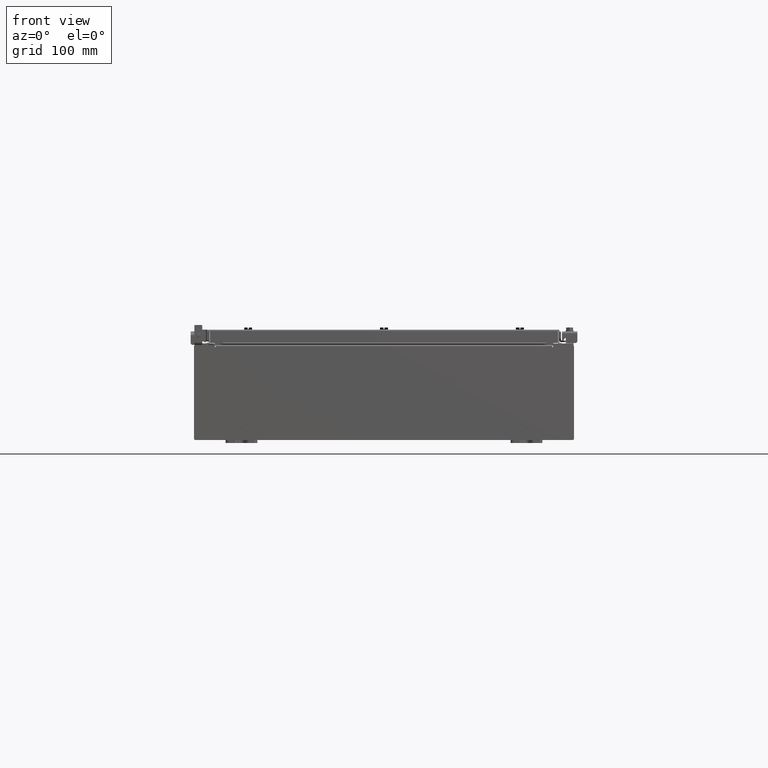
[diagram: clean part render]
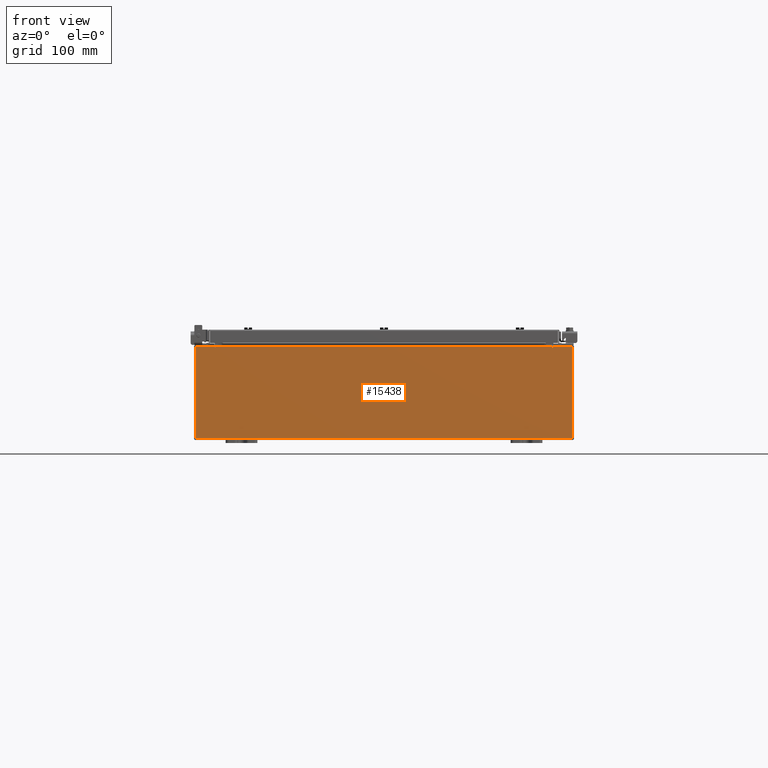
[diagram: same view with one face highlighted and labeled with its STEP entity id]
A machine part, front view. The second image highlights one B-rep face of the part: STEP entity #15438.
In plain terms, the highlighted planar face has unit normal (-0, 1, -0).
Its self-contained STEP definition (entity closure, byte-faithful):
#26 = ORIENTED_EDGE ( 'NONE', *, *, #2424, .T. ) ;
#71 = DIRECTION ( 'NONE',  ( -1.000000000000000000, -0.0000000000000000000, -0.0000000000000000000 ) ) ;
#196 = CARTESIAN_POINT ( 'NONE',  ( -11.92530000000000000, 0.0000000000000000000, 2.925300000000000500 ) ) ;
#260 = AXIS2_PLACEMENT_3D ( 'NONE', #13716, #1036, #9726 ) ;
#343 = DIRECTION ( 'NONE',  ( 1.000000000000000000, 0.0000000000000000000, 0.0000000000000000000 ) ) ;
#420 = VERTEX_POINT ( 'NONE', #18296 ) ;
#1036 = DIRECTION ( 'NONE',  ( -0.0000000000000000000, 1.000000000000000000, -0.0000000000000000000 ) ) ;
#1087 = LINE ( 'NONE', #1950, #19637 ) ;
#1301 = CARTESIAN_POINT ( 'NONE',  ( 11.92530000000000000, 0.0000000000000000000, 2.925300000000000500 ) ) ;
#1394 = DIRECTION ( 'NONE',  ( 0.0000000000000000000, 0.0000000000000000000, -1.000000000000000000 ) ) ;
#1409 = CARTESIAN_POINT ( 'NONE',  ( 10.63720000000000400, 0.0000000000000000000, 0.0000000000000000000 ) ) ;
#1474 = ORIENTED_EDGE ( 'NONE', *, *, #17584, .T. ) ;
#1617 = VERTEX_POINT ( 'NONE', #4886 ) ;
#1630 = CARTESIAN_POINT ( 'NONE',  ( 10.67455000000000200, 0.0000000000000000000, 2.874950000000000600 ) ) ;
#1950 = CARTESIAN_POINT ( 'NONE',  ( -11.92530000000000000, 0.0000000000000000000, 2.925300000000000500 ) ) ;
#1976 = LINE ( 'NONE', #196, #6797 ) ;
#2050 = DIRECTION ( 'NONE',  ( -0.0000000000000000000, -0.0000000000000000000, 1.000000000000000000 ) ) ;
#2424 = EDGE_CURVE ( 'NONE', #1617, #5900, #8476, .T. ) ;
#2739 = CARTESIAN_POINT ( 'NONE',  ( 11.92530000000000000, 0.0000000000000000000, -2.925299999999999600 ) ) ;
#2904 = EDGE_CURVE ( 'NONE', #3448, #1617, #1087, .T. ) ;
#3448 = VERTEX_POINT ( 'NONE', #6871 ) ;
#3664 = VECTOR ( 'NONE', #22945, 39.37007874015748100 ) ;
#3867 = ORIENTED_EDGE ( 'NONE', *, *, #16616, .F. ) ;
#4303 = EDGE_CURVE ( 'NONE', #420, #5107, #20281, .T. ) ;
#4551 = CARTESIAN_POINT ( 'NONE',  ( 10.65587500000000200, 0.0000000000000000000, 2.874950000000000600 ) ) ;
#4704 = VERTEX_POINT ( 'NONE', #21957 ) ;
#4886 = CARTESIAN_POINT ( 'NONE',  ( 11.92530000000000000, 0.0000000000000000000, 2.925300000000000500 ) ) ;
#5074 = ORIENTED_EDGE ( 'NONE', *, *, #6659, .F. ) ;
#5097 = VECTOR ( 'NONE', #20665, 39.37007874015748100 ) ;
#5107 = VERTEX_POINT ( 'NONE', #23246 ) ;
#5516 = LINE ( 'NONE', #1409, #15586 ) ;
#5634 = EDGE_CURVE ( 'NONE', #4704, #21028, #1976, .T. ) ;
#5900 = VERTEX_POINT ( 'NONE', #2739 ) ;
#5925 = VERTEX_POINT ( 'NONE', #20685 ) ;
#6295 = CARTESIAN_POINT ( 'NONE',  ( -11.92530000000000000, 0.0000000000000000000, 2.925300000000000500 ) ) ;
#6364 = DIRECTION ( 'NONE',  ( 0.0000000000000000000, 0.0000000000000000000, -1.000000000000000000 ) ) ;
#6659 = EDGE_CURVE ( 'NONE', #11723, #5925, #16801, .T. ) ;
#6797 = VECTOR ( 'NONE', #2050, 39.37007874015748100 ) ;
#6828 = PLANE ( 'NONE',  #19627 ) ;
#6871 = CARTESIAN_POINT ( 'NONE',  ( 10.67455000000000200, 0.0000000000000000000, 2.925300000000000500 ) ) ;
#7229 = ORIENTED_EDGE ( 'NONE', *, *, #7734, .F. ) ;
#7700 = ORIENTED_EDGE ( 'NONE', *, *, #19625, .F. ) ;
#7734 = EDGE_CURVE ( 'NONE', #3448, #11723, #16764, .T. ) ;
#7822 = DIRECTION ( 'NONE',  ( 0.0000000000000000000, 0.0000000000000000000, 1.000000000000000000 ) ) ;
#8476 = LINE ( 'NONE', #1301, #3664 ) ;
#8601 = CARTESIAN_POINT ( 'NONE',  ( -10.63720000000000400, -0.0000000000000000000, 0.0000000000000000000 ) ) ;
#8821 = ORIENTED_EDGE ( 'NONE', *, *, #4303, .F. ) ;
#9002 = CARTESIAN_POINT ( 'NONE',  ( 10.63720000000000400, 0.0000000000000000000, 2.912300000000000600 ) ) ;
#9027 = VECTOR ( 'NONE', #71, 39.37007874015748100 ) ;
#9168 = CARTESIAN_POINT ( 'NONE',  ( 10.67454999999987700, -0.0000000000000000000, -4.633366117301834200E-013 ) ) ;
#9465 = VECTOR ( 'NONE', #21590, 39.37007874015748100 ) ;
#9527 = EDGE_CURVE ( 'NONE', #5925, #23082, #5516, .T. ) ;
#9646 = CARTESIAN_POINT ( 'NONE',  ( -10.67455000000000200, -0.0000000000000000000, 0.0000000000000000000 ) ) ;
#9726 = DIRECTION ( 'NONE',  ( 0.0000000000000000000, 0.0000000000000000000, -1.000000000000000000 ) ) ;
#10364 = VECTOR ( 'NONE', #19859, 39.37007874015748100 ) ;
#10419 = VECTOR ( 'NONE', #7822, 39.37007874015748100 ) ;
#10444 = DIRECTION ( 'NONE',  ( 0.0000000000000000000, -0.0000000000000000000, -1.000000000000000000 ) ) ;
#10895 = CARTESIAN_POINT ( 'NONE',  ( -10.63720000000000400, 1.024442997624098700E-016, 2.912300000000000600 ) ) ;
#11047 = VERTEX_POINT ( 'NONE', #17671 ) ;
#11116 = ORIENTED_EDGE ( 'NONE', *, *, #14222, .T. ) ;
#11445 = VECTOR ( 'NONE', #1394, 39.37007874015748100 ) ;
#11723 = VERTEX_POINT ( 'NONE', #1630 ) ;
#12920 = ORIENTED_EDGE ( 'NONE', *, *, #5634, .T. ) ;
#13716 = CARTESIAN_POINT ( 'NONE',  ( -10.65587500000000200, 0.0000000000000000000, 2.874950000000000600 ) ) ;
#14222 = EDGE_CURVE ( 'NONE', #21028, #16465, #19940, .T. ) ;
#14321 = ORIENTED_EDGE ( 'NONE', *, *, #14489, .T. ) ;
#14489 = EDGE_CURVE ( 'NONE', #5900, #4704, #18512, .T. ) ;
#15059 = ORIENTED_EDGE ( 'NONE', *, *, #9527, .F. ) ;
#15438 = ADVANCED_FACE ( 'NONE', ( #20168 ), #6828, .F. ) ;
#15586 = VECTOR ( 'NONE', #15782, 39.37007874015748100 ) ;
#15782 = DIRECTION ( 'NONE',  ( 0.0000000000000000000, 0.0000000000000000000, 1.000000000000000000 ) ) ;
#16186 = LINE ( 'NONE', #8601, #11445 ) ;
#16465 = VERTEX_POINT ( 'NONE', #18816 ) ;
#16616 = EDGE_CURVE ( 'NONE', #11047, #420, #16186, .T. ) ;
#16764 = LINE ( 'NONE', #9168, #10364 ) ;
#16801 = CIRCLE ( 'NONE', #19819, 0.01867499999999949400 ) ;
#17066 = DIRECTION ( 'NONE',  ( -0.0000000000000000000, 1.000000000000000000, -0.0000000000000000000 ) ) ;
#17584 = EDGE_CURVE ( 'NONE', #11047, #23082, #18947, .T. ) ;
#17671 = CARTESIAN_POINT ( 'NONE',  ( -10.63720000000000400, 1.024442997624098700E-016, 2.912300000000000600 ) ) ;
#18179 = ORIENTED_EDGE ( 'NONE', *, *, #2904, .T. ) ;
#18296 = CARTESIAN_POINT ( 'NONE',  ( -10.63720000000000400, -0.0000000000000000000, 2.874950000000000600 ) ) ;
#18512 = LINE ( 'NONE', #21597, #9027 ) ;
#18816 = CARTESIAN_POINT ( 'NONE',  ( -10.67455000000000200, 0.0000000000000000000, 2.925300000000000500 ) ) ;
#18947 = LINE ( 'NONE', #10895, #9465 ) ;
#19408 = CARTESIAN_POINT ( 'NONE',  ( -11.92530000000000000, 0.0000000000000000000, 2.925300000000000500 ) ) ;
#19625 = EDGE_CURVE ( 'NONE', #5107, #16465, #19912, .T. ) ;
#19627 = AXIS2_PLACEMENT_3D ( 'NONE', #22858, #21114, #10444 ) ;
#19637 = VECTOR ( 'NONE', #343, 39.37007874015748100 ) ;
#19819 = AXIS2_PLACEMENT_3D ( 'NONE', #4551, #17066, #6364 ) ;
#19859 = DIRECTION ( 'NONE',  ( -4.340572780400004900E-014, 0.0000000000000000000, -1.000000000000000000 ) ) ;
#19912 = LINE ( 'NONE', #9646, #10419 ) ;
#19940 = LINE ( 'NONE', #6295, #5097 ) ;
#20128 = EDGE_LOOP ( 'NONE', ( #7700, #8821, #3867, #1474, #15059, #5074, #7229, #18179, #26, #14321, #12920, #11116 ) ) ;
#20168 = FACE_OUTER_BOUND ( 'NONE', #20128, .T. ) ;
#20281 = CIRCLE ( 'NONE', #260, 0.01867499999999949400 ) ;
#20665 = DIRECTION ( 'NONE',  ( 1.000000000000000000, 0.0000000000000000000, 0.0000000000000000000 ) ) ;
#20685 = CARTESIAN_POINT ( 'NONE',  ( 10.63720000000000400, 0.0000000000000000000, 2.874950000000000600 ) ) ;
#21028 = VERTEX_POINT ( 'NONE', #19408 ) ;
#21114 = DIRECTION ( 'NONE',  ( 0.0000000000000000000, -1.000000000000000000, 0.0000000000000000000 ) ) ;
#21590 = DIRECTION ( 'NONE',  ( 1.000000000000000000, 0.0000000000000000000, 0.0000000000000000000 ) ) ;
#21597 = CARTESIAN_POINT ( 'NONE',  ( -11.92530000000000000, 0.0000000000000000000, -2.925299999999999600 ) ) ;
#21957 = CARTESIAN_POINT ( 'NONE',  ( -11.92530000000000000, 0.0000000000000000000, -2.925299999999999600 ) ) ;
#22858 = CARTESIAN_POINT ( 'NONE',  ( 0.0000000000000000000, 0.0000000000000000000, 0.0000000000000000000 ) ) ;
#22945 = DIRECTION ( 'NONE',  ( 0.0000000000000000000, 0.0000000000000000000, -1.000000000000000000 ) ) ;
#23082 = VERTEX_POINT ( 'NONE', #9002 ) ;
#23246 = CARTESIAN_POINT ( 'NONE',  ( -10.67455000000000200, 0.0000000000000000000, 2.874950000000000600 ) ) ;